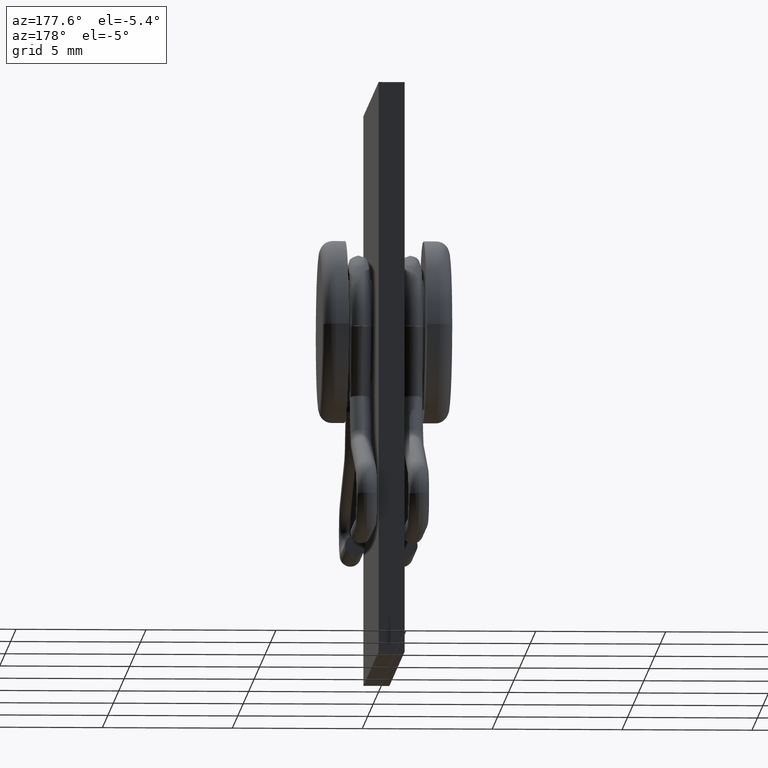
[diagram: clean part render]
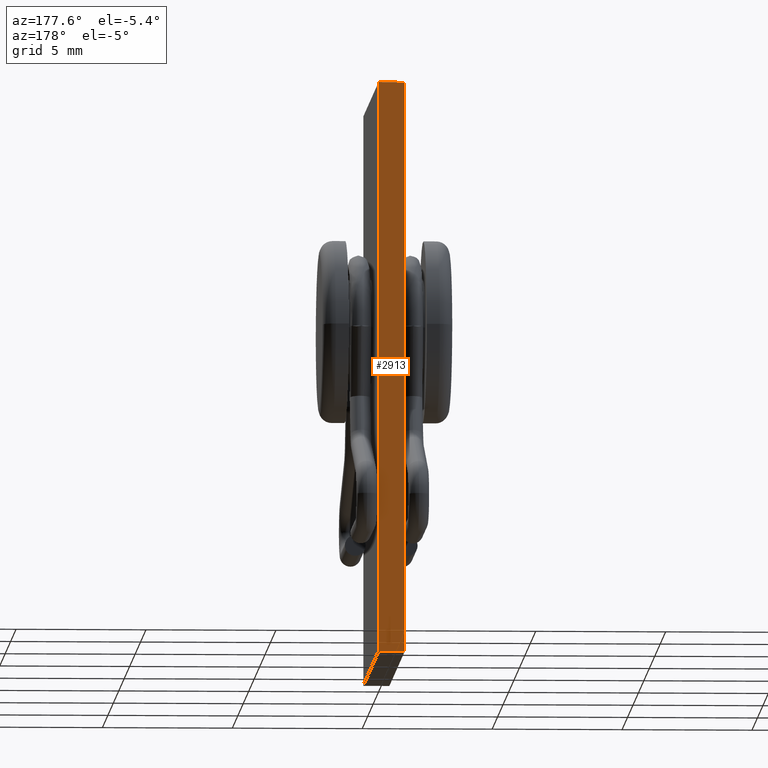
[diagram: same view with one face highlighted and labeled with its STEP entity id]
A machine part, auxiliary view. The second image highlights one B-rep face of the part: STEP entity #2913.
In plain terms, the highlighted planar face has unit normal (0, 1, 0).
Its self-contained STEP definition (entity closure, byte-faithful):
#40 = CARTESIAN_POINT ( 'NONE',  ( -0.5000000000000007772, 7.000000000000000888, 22.00000000000000000 ) ) ;
#74 = VECTOR ( 'NONE', #2359, 1000.000000000000000 ) ;
#96 = CARTESIAN_POINT ( 'NONE',  ( -0.5000000000000007772, 7.000000000000000888, 0.000000000000000000 ) ) ;
#236 = EDGE_CURVE ( 'NONE', #1883, #1937, #366, .T. ) ;
#289 = LINE ( 'NONE', #40, #74 ) ;
#366 = LINE ( 'NONE', #863, #2603 ) ;
#549 = EDGE_CURVE ( 'NONE', #1403, #1937, #1089, .T. ) ;
#625 = VERTEX_POINT ( 'NONE', #2900 ) ;
#798 = DIRECTION ( 'NONE',  ( 1.000000000000000000, 0.000000000000000000, 0.000000000000000000 ) ) ;
#863 = CARTESIAN_POINT ( 'NONE',  ( 0.4999999999999990563, 7.000000000000000888, 22.00000000000000000 ) ) ;
#864 = CARTESIAN_POINT ( 'NONE',  ( -0.5000000000000007772, 7.000000000000000888, 0.000000000000000000 ) ) ;
#965 = EDGE_CURVE ( 'NONE', #625, #1883, #289, .T. ) ;
#990 = ORIENTED_EDGE ( 'NONE', *, *, #965, .T. ) ;
#1089 = LINE ( 'NONE', #96, #2905 ) ;
#1091 = CARTESIAN_POINT ( 'NONE',  ( 0.4999999999999990563, 7.000000000000000888, 0.000000000000000000 ) ) ;
#1350 = CARTESIAN_POINT ( 'NONE',  ( -0.5000000000000007772, 7.000000000000000888, 22.00000000000000000 ) ) ;
#1403 = VERTEX_POINT ( 'NONE', #864 ) ;
#1410 = AXIS2_PLACEMENT_3D ( 'NONE', #2756, #2510, #1583 ) ;
#1560 = LINE ( 'NONE', #1350, #2865 ) ;
#1583 = DIRECTION ( 'NONE',  ( 0.000000000000000000, -0.000000000000000000, 1.000000000000000000 ) ) ;
#1829 = DIRECTION ( 'NONE',  ( -0.000000000000000000, -0.000000000000000000, -1.000000000000000000 ) ) ;
#1836 = ORIENTED_EDGE ( 'NONE', *, *, #1977, .F. ) ;
#1883 = VERTEX_POINT ( 'NONE', #2225 ) ;
#1937 = VERTEX_POINT ( 'NONE', #1091 ) ;
#1977 = EDGE_CURVE ( 'NONE', #625, #1403, #1560, .T. ) ;
#2225 = CARTESIAN_POINT ( 'NONE',  ( 0.4999999999999990563, 7.000000000000000888, 22.00000000000000000 ) ) ;
#2234 = ORIENTED_EDGE ( 'NONE', *, *, #549, .F. ) ;
#2359 = DIRECTION ( 'NONE',  ( 1.000000000000000000, 0.000000000000000000, 0.000000000000000000 ) ) ;
#2510 = DIRECTION ( 'NONE',  ( 0.000000000000000000, 1.000000000000000000, 0.000000000000000000 ) ) ;
#2603 = VECTOR ( 'NONE', #1829, 1000.000000000000000 ) ;
#2673 = ORIENTED_EDGE ( 'NONE', *, *, #236, .T. ) ;
#2756 = CARTESIAN_POINT ( 'NONE',  ( -0.5000000000000007772, 7.000000000000000888, 22.00000000000000000 ) ) ;
#2804 = PLANE ( 'NONE',  #1410 ) ;
#2828 = DIRECTION ( 'NONE',  ( -0.000000000000000000, -0.000000000000000000, -1.000000000000000000 ) ) ;
#2865 = VECTOR ( 'NONE', #2828, 1000.000000000000000 ) ;
#2900 = CARTESIAN_POINT ( 'NONE',  ( -0.5000000000000007772, 7.000000000000000888, 22.00000000000000000 ) ) ;
#2905 = VECTOR ( 'NONE', #798, 1000.000000000000000 ) ;
#2913 = ADVANCED_FACE ( 'NONE', ( #3023 ), #2804, .T. ) ;
#3012 = EDGE_LOOP ( 'NONE', ( #2234, #1836, #990, #2673 ) ) ;
#3023 = FACE_OUTER_BOUND ( 'NONE', #3012, .T. ) ;